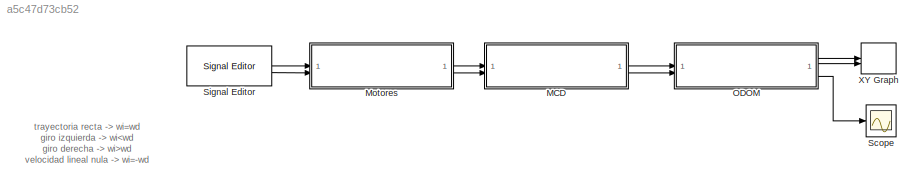
MODEL slx_a5c47d73cb52
KIND model
CONFIG AbsTol = auto
CONFIG EnableMultiTasking = off
CONFIG FixedStep = auto
CONFIG MaxStep = auto
CONFIG MinStep = auto
CONFIG RelTol = 1e-3
CONFIG SampleTimeConstraint = Unconstrained
CONFIG SolverName = VariableStepAuto
CONFIG StartTime = 0.0
CONFIG StopTime = 10.0
BLOCK [SubSystem] MCD
  ReferencedSubsystem = MCD
BLOCK [SubSystem] Motores
  ReferencedSubsystem = motores
BLOCK [SubSystem] ODOM
  ReferencedSubsystem = Odometria
BLOCK [Scope] Scope
  Floating = off
  NumInputPorts = 1
  ScopeSpecificationString = Simulink.scopes.TimeScopeBlockCfg('CurrentConfiguration', extmgr.ConfigurationSet(extmgr.Configuration('Core','General UI',true),extmgr.Configuration('Core','Source UI',true),extmgr.Configuration('Sources','WiredSimulink',true),extmgr.Configuration('Visuals','Time Domain',true,'SerializedDisplays',{struct('MinYLimReal','-8.32534','MaxYLimReal','0.92504','YLabelReal','','MinYLimMag','0.00000','MaxY...<+1326ch>
BLOCK [Reference] Signal Editor  REF=SignalEditorBlockLib/Signal Editor
  LibrarySourceBlock = simulink/Sources/Signal Editor
  SourceBlock = SignalEditorBlockLib/Signal Editor
  SourceType = SignalEditor
  UserDataPersistent = on
BLOCK [Record] XY Graph
  CompatibilityTag = XY
  FileSettingsInternal = {"entries":[{"content":{"excelSettings":{"content":{},"type":"Streamout.ExcelSettings"}},"type":"Streamout.FileSettingStorage","uuid":""}],"packageUris":["http:\/\/schema.mathworks.com\/mf0\/streamout_blocks\/R2020a"],"version":"1.0"}
  Layout = [1 1]
  SignalsInternal = {"entries":[{"content":{"signals":[{"content":{"blockPath":[],"dimensions":[1],"domain":"","lineColor":"#a2142f","plots":[ 1 ],"port":1,"signalID":1,"signalName":"ODOM:1"},"type":"RecordBlkView.Signal","uuid":""},{"content":{"blockPath":[],"dimensions":[1],"domain":"","lineColor":"#139fff","plots":[ 1 ],"port":2,"signalID":2,"signalName":"ODOM:2"},"type":"RecordBlkView.Signal","uuid":""}]},"type":...<+136ch>
  VisualizationBindings = {"xyplotplugin":{"info":[{"series":[{"bindingParametersList":[{"parameter":"X-Axis","signalID":1,"signalName":"ODOM:1"},{"parameter":"Y-Axis","signalID":2,"signalName":"ODOM:2"}],"seriesID":0}],"subplotID":1}]}}
ANNOTATION (root): trayectoria recta -> wi=wd giro izquierda -> wi wi>wd velocidad lineal nula -> wi=-wd
LINE MCD:1 -> ODOM:1
LINE MCD:2 -> ODOM:2
LINE Motores:1 -> MCD:1
LINE Motores:2 -> MCD:2
LINE ODOM:1 -> XY Graph:1
LINE ODOM:2 -> XY Graph:2
LINE ODOM:3 -> Scope:1
LINE Signal Editor:1 -> Motores:1
LINE Signal Editor:2 -> Motores:2
